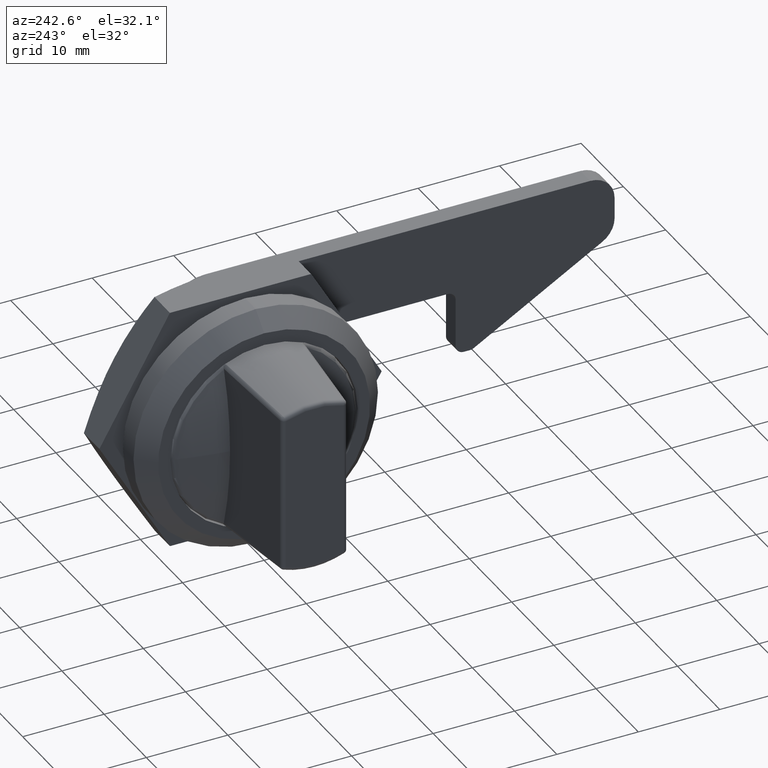
[diagram: clean part render]
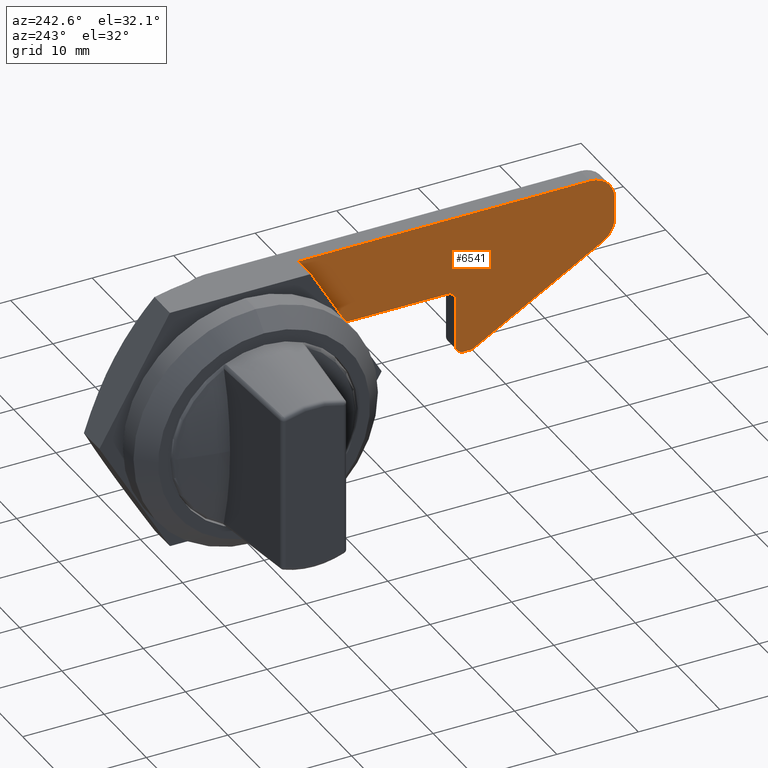
[diagram: same view with one face highlighted and labeled with its STEP entity id]
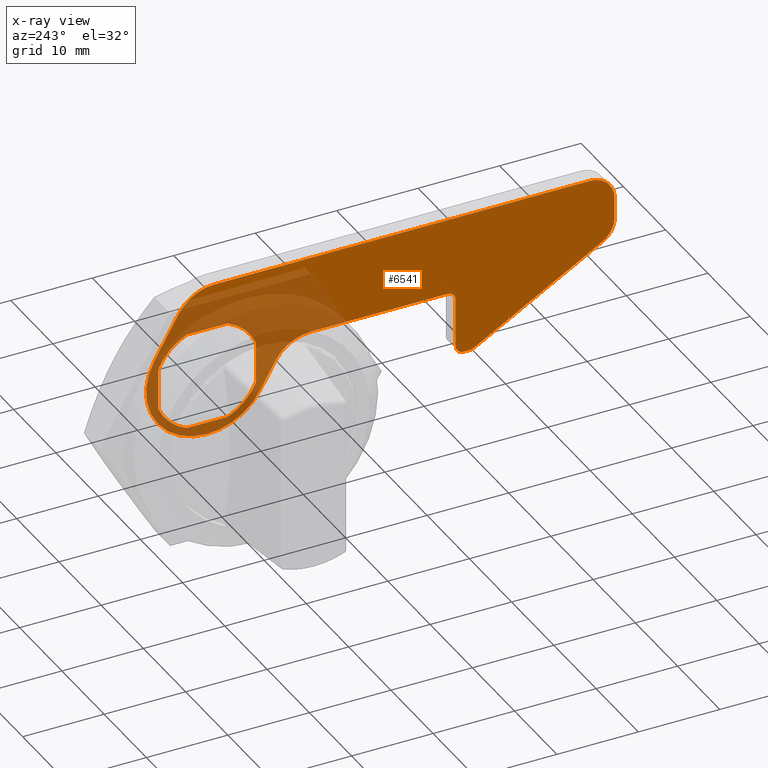
[diagram: x-ray of the same camera — body ghosted, the highlighted face saturated]
A machine part, auxiliary view. The second image highlights one B-rep face of the part: STEP entity #6541.
The next image is the same camera in x-ray: the body ghosted, the highlighted face saturated — about 28% of this face is hidden behind the body in this view.
In plain terms, the highlighted planar face has unit normal (-1, 0, 0).
Its self-contained STEP definition (entity closure, byte-faithful):
#54 = CARTESIAN_POINT ( 'NONE',  ( 13.50000000000839900, -31.50000000000000000, -5.999999999999920100 ) ) ;
#248 = CARTESIAN_POINT ( 'NONE',  ( 13.50000000000836000, 2.500000000000000000, -6.000000000000000000 ) ) ;
#254 = VERTEX_POINT ( 'NONE', #5763 ) ;
#405 = EDGE_CURVE ( 'NONE', #10635, #23935, #15669, .T. ) ;
#538 = VERTEX_POINT ( 'NONE', #21244 ) ;
#587 = VECTOR ( 'NONE', #23249, 1000.000000000000100 ) ;
#637 = CARTESIAN_POINT ( 'NONE',  ( 13.50000000000839900, 3.464101615137795200, 9.000000000000000000 ) ) ;
#775 = ORIENTED_EDGE ( 'NONE', *, *, #4276, .F. ) ;
#842 = AXIS2_PLACEMENT_3D ( 'NONE', #18785, #5806, #20954 ) ;
#1047 = DIRECTION ( 'NONE',  ( -0.0000000000000000000, -0.0000000000000000000, -1.000000000000000000 ) ) ;
#1139 = CARTESIAN_POINT ( 'NONE',  ( 13.50000000000836000, 2.500000000000000000, 6.000000000000000000 ) ) ;
#1321 = EDGE_LOOP ( 'NONE', ( #20393, #27928, #19697, #14343, #3587, #24465, #7569, #12874 ) ) ;
#1575 = CIRCLE ( 'NONE', #18362, 6.500000000000000000 ) ;
#1601 = DIRECTION ( 'NONE',  ( 1.000000000000000000, -0.0000000000000000000, -0.0000000000000000000 ) ) ;
#1687 = DIRECTION ( 'NONE',  ( 1.000000000000000000, -0.0000000000000000000, -0.0000000000000000000 ) ) ;
#1818 = EDGE_LOOP ( 'NONE', ( #11136, #12339, #20165, #7427, #26620, #19036, #9980, #7496, #2200, #2266, #775, #6198, #16681, #21249, #22477, #8332, #17590 ) ) ;
#1934 = CARTESIAN_POINT ( 'NONE',  ( 13.50000000000839900, -30.50000000000000000, 1.000000000000000000 ) ) ;
#1975 = AXIS2_PLACEMENT_3D ( 'NONE', #22445, #9504, #24640 ) ;
#2200 = ORIENTED_EDGE ( 'NONE', *, *, #21419, .F. ) ;
#2266 = ORIENTED_EDGE ( 'NONE', *, *, #6160, .F. ) ;
#2734 = VERTEX_POINT ( 'NONE', #17227 ) ;
#2936 = DIRECTION ( 'NONE',  ( 1.000000000000000000, -0.0000000000000000000, -0.0000000000000000000 ) ) ;
#3161 = AXIS2_PLACEMENT_3D ( 'NONE', #5783, #20932, #7982 ) ;
#3281 = EDGE_CURVE ( 'NONE', #20198, #25866, #18709, .T. ) ;
#3408 = VECTOR ( 'NONE', #8437, 1000.000000000000000 ) ;
#3497 = LINE ( 'NONE', #23769, #15705 ) ;
#3514 = EDGE_CURVE ( 'NONE', #20195, #20198, #17370, .T. ) ;
#3587 = ORIENTED_EDGE ( 'NONE', *, *, #20029, .T. ) ;
#3937 = VERTEX_POINT ( 'NONE', #10945 ) ;
#4276 = EDGE_CURVE ( 'NONE', #2734, #13366, #18350, .T. ) ;
#4287 = AXIS2_PLACEMENT_3D ( 'NONE', #9214, #24344, #11383 ) ;
#4585 = DIRECTION ( 'NONE',  ( -0.0000000000000000000, -0.0000000000000000000, 1.000000000000000000 ) ) ;
#4801 = DIRECTION ( 'NONE',  ( 1.000000000000000000, -0.0000000000000000000, -0.0000000000000000000 ) ) ;
#5071 = CARTESIAN_POINT ( 'NONE',  ( 13.50000000000839900, -0.8660254037844059600, 11.50000000000000000 ) ) ;
#5167 = VECTOR ( 'NONE', #16990, 999.9999999999998900 ) ;
#5172 = CIRCLE ( 'NONE', #17130, 5.000000000000000000 ) ;
#5465 = CIRCLE ( 'NONE', #9187, 5.000000000000000000 ) ;
#5511 = PLANE ( 'NONE',  #16459 ) ;
#5535 = VERTEX_POINT ( 'NONE', #1934 ) ;
#5763 = CARTESIAN_POINT ( 'NONE',  ( 13.50000000000839900, -29.50000000000000000, 2.000000000000000000 ) ) ;
#5783 = CARTESIAN_POINT ( 'NONE',  ( 13.50000000000836000, 0.0000000000000000000, -1.421085471520200100E-014 ) ) ;
#5806 = DIRECTION ( 'NONE',  ( 1.000000000000000000, -0.0000000000000000000, -0.0000000000000000000 ) ) ;
#5840 = VECTOR ( 'NONE', #4585, 1000.000000000000000 ) ;
#5930 = VERTEX_POINT ( 'NONE', #637 ) ;
#5974 = LINE ( 'NONE', #11822, #10393 ) ;
#6083 = CARTESIAN_POINT ( 'NONE',  ( 13.50000000000839900, 6.495190528383280300, 3.750000000000000000 ) ) ;
#6115 = DIRECTION ( 'NONE',  ( -0.0000000000000000000, 1.000000000000000000, -0.0000000000000000000 ) ) ;
#6160 = EDGE_CURVE ( 'NONE', #13366, #9782, #23392, .T. ) ;
#6198 = ORIENTED_EDGE ( 'NONE', *, *, #24052, .F. ) ;
#6248 = CARTESIAN_POINT ( 'NONE',  ( 13.50000000000836000, 9.941353296127888600E-014, 11.50000000000000000 ) ) ;
#6301 = VERTEX_POINT ( 'NONE', #11769 ) ;
#6320 = LINE ( 'NONE', #21084, #587 ) ;
#6533 = DIRECTION ( 'NONE',  ( 1.000000000000000000, -0.0000000000000000000, -0.0000000000000000000 ) ) ;
#6541 = ADVANCED_FACE ( 'NONE', ( #26467, #20678 ), #5511, .T. ) ;
#6858 = CARTESIAN_POINT ( 'NONE',  ( 13.50000000000836000, -30.50000000000000000, 8.526512829121199700E-014 ) ) ;
#6959 = CARTESIAN_POINT ( 'NONE',  ( 13.50000000000836000, 0.0000000000000000000, -1.421085471520200100E-014 ) ) ;
#7133 = DIRECTION ( 'NONE',  ( 1.000000000000000000, -0.0000000000000000000, -0.0000000000000000000 ) ) ;
#7258 = CARTESIAN_POINT ( 'NONE',  ( 13.50000000000839900, -50.00000000000000000, 8.500000000000000000 ) ) ;
#7327 = CARTESIAN_POINT ( 'NONE',  ( 13.50000000000839900, -30.50000000000000000, -4.999999999999920100 ) ) ;
#7427 = ORIENTED_EDGE ( 'NONE', *, *, #3281, .F. ) ;
#7496 = ORIENTED_EDGE ( 'NONE', *, *, #24214, .T. ) ;
#7511 = CIRCLE ( 'NONE', #16958, 1.000000000000000000 ) ;
#7569 = ORIENTED_EDGE ( 'NONE', *, *, #25811, .T. ) ;
#7669 = CARTESIAN_POINT ( 'NONE',  ( 13.50000000000836000, -6.000000000000000000, -2.500000000000000000 ) ) ;
#7982 = DIRECTION ( 'NONE',  ( 0.0000000000000000000, -1.776356839400250500E-015, 1.000000000000000000 ) ) ;
#8258 = CARTESIAN_POINT ( 'NONE',  ( 13.50000000000836000, -10.72307621135325900, -18.57291281149720400 ) ) ;
#8332 = ORIENTED_EDGE ( 'NONE', *, *, #13808, .F. ) ;
#8437 = DIRECTION ( 'NONE',  ( -0.0000000000000000000, -1.000000000000000000, -0.0000000000000000000 ) ) ;
#9021 = EDGE_CURVE ( 'NONE', #25462, #19439, #14918, .T. ) ;
#9127 = DIRECTION ( 'NONE',  ( -0.0000000000000000000, 1.000000000000000000, -0.0000000000000000000 ) ) ;
#9129 = DIRECTION ( 'NONE',  ( 1.000000000000000000, -0.0000000000000000000, -0.0000000000000000000 ) ) ;
#9135 = DIRECTION ( 'NONE',  ( 0.0000000000000000000, 0.0000000000000000000, 1.000000000000000000 ) ) ;
#9187 = AXIS2_PLACEMENT_3D ( 'NONE', #17764, #4801, #19953 ) ;
#9214 = CARTESIAN_POINT ( 'NONE',  ( 13.50000000000836000, 0.0000000000000000000, -1.421085471520200100E-014 ) ) ;
#9295 = VECTOR ( 'NONE', #11616, 1000.000000000000000 ) ;
#9504 = DIRECTION ( 'NONE',  ( 1.000000000000000000, -0.0000000000000000000, -0.0000000000000000000 ) ) ;
#9782 = VERTEX_POINT ( 'NONE', #7327 ) ;
#9872 = DIRECTION ( 'NONE',  ( -1.000000000000000000, 0.0000000000000000000, 0.0000000000000000000 ) ) ;
#9897 = VECTOR ( 'NONE', #25439, 1000.000000000000000 ) ;
#9980 = ORIENTED_EDGE ( 'NONE', *, *, #24377, .F. ) ;
#10318 = CARTESIAN_POINT ( 'NONE',  ( 13.50000000000836000, -6.000000000000000000, 4.263256414560599900E-014 ) ) ;
#10393 = VECTOR ( 'NONE', #1047, 1000.000000000000000 ) ;
#10410 = CARTESIAN_POINT ( 'NONE',  ( 13.50000000000839900, -47.00000000000000000, 5.835680518387389900 ) ) ;
#10635 = VERTEX_POINT ( 'NONE', #25229 ) ;
#10708 = VERTEX_POINT ( 'NONE', #23228 ) ;
#10726 = CIRCLE ( 'NONE', #18904, 7.500000000000000000 ) ;
#10945 = CARTESIAN_POINT ( 'NONE',  ( 13.50000000000839900, -12.70170592217190000, 2.000000000000000000 ) ) ;
#11069 = CIRCLE ( 'NONE', #24184, 3.000000000000000900 ) ;
#11136 = ORIENTED_EDGE ( 'NONE', *, *, #21453, .F. ) ;
#11383 = DIRECTION ( 'NONE',  ( 0.0000000000000000000, 8.881784197001252300E-016, 1.000000000000000000 ) ) ;
#11499 = CARTESIAN_POINT ( 'NONE',  ( 13.50000000000839900, -47.00000000000000000, 11.50000000000000000 ) ) ;
#11575 = AXIS2_PLACEMENT_3D ( 'NONE', #6959, #22071, #9135 ) ;
#11616 = DIRECTION ( 'NONE',  ( -0.0000000000000000000, 1.000000000000000000, -6.938893903907230300E-016 ) ) ;
#11769 = CARTESIAN_POINT ( 'NONE',  ( 13.50000000000839900, -2.500000000000000000, 6.000000000000000000 ) ) ;
#11822 = CARTESIAN_POINT ( 'NONE',  ( 13.50000000000836000, -50.00000000000000000, 8.526512829121199700E-014 ) ) ;
#12009 = VERTEX_POINT ( 'NONE', #20211 ) ;
#12041 = VERTEX_POINT ( 'NONE', #7258 ) ;
#12288 = LINE ( 'NONE', #6858, #5840 ) ;
#12339 = ORIENTED_EDGE ( 'NONE', *, *, #15881, .F. ) ;
#12537 = CARTESIAN_POINT ( 'NONE',  ( 13.50000000000836000, -6.495190528383220800, -3.750000000000055100 ) ) ;
#12572 = DIRECTION ( 'NONE',  ( 0.0000000000000000000, 2.312964634635742300E-015, 1.000000000000000000 ) ) ;
#12612 = DIRECTION ( 'NONE',  ( -0.0000000000000000000, 0.8660254037844387100, -0.4999999999999998900 ) ) ;
#12646 = CIRCLE ( 'NONE', #3161, 6.500000000000000000 ) ;
#12771 = VERTEX_POINT ( 'NONE', #6083 ) ;
#12874 = ORIENTED_EDGE ( 'NONE', *, *, #26046, .T. ) ;
#13055 = AXIS2_PLACEMENT_3D ( 'NONE', #20091, #7133, #22253 ) ;
#13104 = CARTESIAN_POINT ( 'NONE',  ( 13.50000000000836000, 6.000000000000000000, -2.500000000000000000 ) ) ;
#13366 = VERTEX_POINT ( 'NONE', #54 ) ;
#13437 = VECTOR ( 'NONE', #18646, 1000.000000000000000 ) ;
#13674 = EDGE_CURVE ( 'NONE', #6301, #10635, #16494, .T. ) ;
#13808 = EDGE_CURVE ( 'NONE', #19439, #12041, #17183, .T. ) ;
#14028 = VERTEX_POINT ( 'NONE', #13104 ) ;
#14301 = CARTESIAN_POINT ( 'NONE',  ( 13.50000000000836000, 4.163336342344294400E-015, 6.000000000000000000 ) ) ;
#14343 = ORIENTED_EDGE ( 'NONE', *, *, #18392, .T. ) ;
#14548 = CARTESIAN_POINT ( 'NONE',  ( 13.50000000000839900, -29.50000000000000000, 1.000000000000000000 ) ) ;
#14635 = CARTESIAN_POINT ( 'NONE',  ( 13.50000000000839900, -32.23205080756915200, -4.999999999999920100 ) ) ;
#14918 = LINE ( 'NONE', #6248, #3408 ) ;
#15151 = EDGE_CURVE ( 'NONE', #12041, #22227, #5974, .T. ) ;
#15310 = VERTEX_POINT ( 'NONE', #1139 ) ;
#15669 = LINE ( 'NONE', #10318, #9897 ) ;
#15705 = VECTOR ( 'NONE', #25963, 1000.000000000000000 ) ;
#15881 = EDGE_CURVE ( 'NONE', #12771, #5930, #6320, .T. ) ;
#15885 = CARTESIAN_POINT ( 'NONE',  ( 13.50000000000836000, 0.0000000000000000000, -1.421085471520200100E-014 ) ) ;
#16282 = CARTESIAN_POINT ( 'NONE',  ( 13.50000000000839900, -6.245004513516739700E-017, -7.500000000000000000 ) ) ;
#16362 = VECTOR ( 'NONE', #12612, 1000.000000000000000 ) ;
#16411 = EDGE_CURVE ( 'NONE', #25866, #12771, #10726, .T. ) ;
#16459 = AXIS2_PLACEMENT_3D ( 'NONE', #18475, #9872, #24999 ) ;
#16494 = CIRCLE ( 'NONE', #11575, 6.500000000000000000 ) ;
#16679 = CARTESIAN_POINT ( 'NONE',  ( 13.50000000000839900, -8.371578903249719900, -0.4999999999999760700 ) ) ;
#16681 = ORIENTED_EDGE ( 'NONE', *, *, #20379, .F. ) ;
#16723 = DIRECTION ( 'NONE',  ( 0.0000000000000000000, 0.0000000000000000000, 1.000000000000000000 ) ) ;
#16777 = CARTESIAN_POINT ( 'NONE',  ( 13.50000000000839900, -6.495190528383300700, -3.749999999999914700 ) ) ;
#16820 = DIRECTION ( 'NONE',  ( 0.0000000000000000000, -1.387778780781445700E-014, 1.000000000000000000 ) ) ;
#16915 = CARTESIAN_POINT ( 'NONE',  ( 13.50000000000836000, 9.941353296127888600E-014, 2.000000000000000000 ) ) ;
#16958 = AXIS2_PLACEMENT_3D ( 'NONE', #14548, #1601, #16723 ) ;
#16990 = DIRECTION ( 'NONE',  ( -0.0000000000000000000, 0.5000000000000119900, -0.8660254037844317100 ) ) ;
#17081 = EDGE_CURVE ( 'NONE', #23935, #12009, #1575, .T. ) ;
#17130 = AXIS2_PLACEMENT_3D ( 'NONE', #22065, #9129, #24251 ) ;
#17183 = CIRCLE ( 'NONE', #13055, 2.999999999999999100 ) ;
#17227 = CARTESIAN_POINT ( 'NONE',  ( 13.50000000000839900, -32.23205080756915200, -5.999999999999920100 ) ) ;
#17321 = LINE ( 'NONE', #14301, #13437 ) ;
#17327 = EDGE_CURVE ( 'NONE', #22227, #25936, #11069, .T. ) ;
#17370 = LINE ( 'NONE', #12537, #5167 ) ;
#17590 = ORIENTED_EDGE ( 'NONE', *, *, #9021, .F. ) ;
#17699 = VECTOR ( 'NONE', #9127, 1000.000000000000000 ) ;
#17764 = CARTESIAN_POINT ( 'NONE',  ( 13.50000000000839900, -12.70170592217190000, -3.000000000000000000 ) ) ;
#18048 = DIRECTION ( 'NONE',  ( 0.0000000000000000000, 0.0000000000000000000, 1.000000000000000000 ) ) ;
#18333 = LINE ( 'NONE', #16915, #19016 ) ;
#18350 = LINE ( 'NONE', #26346, #17699 ) ;
#18362 = AXIS2_PLACEMENT_3D ( 'NONE', #15885, #2936, #18048 ) ;
#18392 = EDGE_CURVE ( 'NONE', #12009, #25584, #26554, .T. ) ;
#18459 = CARTESIAN_POINT ( 'NONE',  ( 13.50000000000839900, -48.50000000000000000, 3.237604307034069900 ) ) ;
#18475 = CARTESIAN_POINT ( 'NONE',  ( 13.50000000000836000, 9.941353296127888600E-014, 8.526512829121199700E-014 ) ) ;
#18646 = DIRECTION ( 'NONE',  ( -0.0000000000000000000, -1.000000000000000000, 6.938893903907230300E-016 ) ) ;
#18709 = CIRCLE ( 'NONE', #842, 7.500000000000000000 ) ;
#18785 = CARTESIAN_POINT ( 'NONE',  ( 13.50000000000839900, -6.245004513516739700E-017, 0.0000000000000000000 ) ) ;
#18904 = AXIS2_PLACEMENT_3D ( 'NONE', #19491, #6533, #21663 ) ;
#19016 = VECTOR ( 'NONE', #6115, 1000.000000000000000 ) ;
#19036 = ORIENTED_EDGE ( 'NONE', *, *, #25099, .T. ) ;
#19439 = VERTEX_POINT ( 'NONE', #11499 ) ;
#19491 = CARTESIAN_POINT ( 'NONE',  ( 13.50000000000839900, -6.245004513516739700E-017, 0.0000000000000000000 ) ) ;
#19697 = ORIENTED_EDGE ( 'NONE', *, *, #17081, .T. ) ;
#19953 = DIRECTION ( 'NONE',  ( 0.0000000000000000000, 1.040834085586084300E-015, 1.000000000000000000 ) ) ;
#20029 = EDGE_CURVE ( 'NONE', #25584, #14028, #12646, .T. ) ;
#20091 = CARTESIAN_POINT ( 'NONE',  ( 13.50000000000839900, -47.00000000000000000, 8.500000000000000000 ) ) ;
#20165 = ORIENTED_EDGE ( 'NONE', *, *, #16411, .F. ) ;
#20195 = VERTEX_POINT ( 'NONE', #16679 ) ;
#20198 = VERTEX_POINT ( 'NONE', #16777 ) ;
#20211 = CARTESIAN_POINT ( 'NONE',  ( 13.50000000000836000, -2.500000000000000000, -6.000000000000000000 ) ) ;
#20379 = EDGE_CURVE ( 'NONE', #25936, #10708, #22116, .T. ) ;
#20393 = ORIENTED_EDGE ( 'NONE', *, *, #13674, .T. ) ;
#20678 = FACE_OUTER_BOUND ( 'NONE', #1818, .T. ) ;
#20749 = EDGE_CURVE ( 'NONE', #14028, #538, #3497, .T. ) ;
#20932 = DIRECTION ( 'NONE',  ( 1.000000000000000000, -0.0000000000000000000, -0.0000000000000000000 ) ) ;
#20954 = DIRECTION ( 'NONE',  ( 0.0000000000000000000, 1.776356839400250500E-015, 1.000000000000000000 ) ) ;
#21084 = CARTESIAN_POINT ( 'NONE',  ( 13.50000000000836000, 6.495190528383309600, 3.750000000000049700 ) ) ;
#21244 = CARTESIAN_POINT ( 'NONE',  ( 13.50000000000836000, 6.000000000000000000, 2.500000000000000000 ) ) ;
#21249 = ORIENTED_EDGE ( 'NONE', *, *, #17327, .F. ) ;
#21419 = EDGE_CURVE ( 'NONE', #9782, #5535, #12288, .T. ) ;
#21453 = EDGE_CURVE ( 'NONE', #5930, #25462, #5172, .T. ) ;
#21663 = DIRECTION ( 'NONE',  ( 0.0000000000000000000, 0.0000000000000000000, 1.000000000000000000 ) ) ;
#22065 = CARTESIAN_POINT ( 'NONE',  ( 13.50000000000839900, -0.8660254037844059600, 6.500000000000089700 ) ) ;
#22071 = DIRECTION ( 'NONE',  ( 1.000000000000000000, -0.0000000000000000000, -0.0000000000000000000 ) ) ;
#22116 = LINE ( 'NONE', #8258, #16362 ) ;
#22227 = VERTEX_POINT ( 'NONE', #24255 ) ;
#22253 = DIRECTION ( 'NONE',  ( 0.0000000000000000000, 0.0000000000000000000, 1.000000000000000000 ) ) ;
#22445 = CARTESIAN_POINT ( 'NONE',  ( 13.50000000000839900, -31.50000000000000000, -4.999999999999920100 ) ) ;
#22477 = ORIENTED_EDGE ( 'NONE', *, *, #15151, .F. ) ;
#23228 = CARTESIAN_POINT ( 'NONE',  ( 13.50000000000839900, -32.73205080756905300, -5.866025403784419700 ) ) ;
#23249 = DIRECTION ( 'NONE',  ( -0.0000000000000000000, -0.5000000000000003300, 0.8660254037844383700 ) ) ;
#23392 = CIRCLE ( 'NONE', #1975, 1.000000000000000000 ) ;
#23745 = CIRCLE ( 'NONE', #4287, 6.500000000000000000 ) ;
#23769 = CARTESIAN_POINT ( 'NONE',  ( 13.50000000000836000, 6.000000000000000000, 4.263256414560599900E-014 ) ) ;
#23935 = VERTEX_POINT ( 'NONE', #7669 ) ;
#24052 = EDGE_CURVE ( 'NONE', #10708, #2734, #25444, .T. ) ;
#24184 = AXIS2_PLACEMENT_3D ( 'NONE', #10410, #25531, #12572 ) ;
#24214 = EDGE_CURVE ( 'NONE', #254, #5535, #7511, .T. ) ;
#24251 = DIRECTION ( 'NONE',  ( 0.0000000000000000000, 0.0000000000000000000, 1.000000000000000000 ) ) ;
#24255 = CARTESIAN_POINT ( 'NONE',  ( 13.50000000000839900, -50.00000000000000000, 5.835680518387389900 ) ) ;
#24344 = DIRECTION ( 'NONE',  ( 1.000000000000000000, -0.0000000000000000000, -0.0000000000000000000 ) ) ;
#24377 = EDGE_CURVE ( 'NONE', #254, #3937, #18333, .T. ) ;
#24465 = ORIENTED_EDGE ( 'NONE', *, *, #20749, .T. ) ;
#24640 = DIRECTION ( 'NONE',  ( 0.0000000000000000000, 0.0000000000000000000, 1.000000000000000000 ) ) ;
#24999 = DIRECTION ( 'NONE',  ( 0.0000000000000000000, 0.0000000000000000000, 1.000000000000000000 ) ) ;
#25099 = EDGE_CURVE ( 'NONE', #20195, #3937, #5465, .T. ) ;
#25229 = CARTESIAN_POINT ( 'NONE',  ( 13.50000000000836000, -6.000000000000000000, 2.500000000000000000 ) ) ;
#25439 = DIRECTION ( 'NONE',  ( -0.0000000000000000000, -0.0000000000000000000, -1.000000000000000000 ) ) ;
#25444 = CIRCLE ( 'NONE', #27647, 1.000000000000000000 ) ;
#25462 = VERTEX_POINT ( 'NONE', #5071 ) ;
#25531 = DIRECTION ( 'NONE',  ( 1.000000000000000000, -0.0000000000000000000, -0.0000000000000000000 ) ) ;
#25584 = VERTEX_POINT ( 'NONE', #248 ) ;
#25811 = EDGE_CURVE ( 'NONE', #538, #15310, #23745, .T. ) ;
#25866 = VERTEX_POINT ( 'NONE', #16282 ) ;
#25936 = VERTEX_POINT ( 'NONE', #18459 ) ;
#25963 = DIRECTION ( 'NONE',  ( -0.0000000000000000000, -0.0000000000000000000, 1.000000000000000000 ) ) ;
#26046 = EDGE_CURVE ( 'NONE', #15310, #6301, #17321, .T. ) ;
#26346 = CARTESIAN_POINT ( 'NONE',  ( 13.50000000000836000, 9.941353296127888600E-014, -5.999999999999920100 ) ) ;
#26467 = FACE_BOUND ( 'NONE', #1321, .T. ) ;
#26554 = LINE ( 'NONE', #26753, #9295 ) ;
#26620 = ORIENTED_EDGE ( 'NONE', *, *, #3514, .F. ) ;
#26753 = CARTESIAN_POINT ( 'NONE',  ( 13.50000000000836000, -4.163336342344374900E-015, -6.000000000000000000 ) ) ;
#27647 = AXIS2_PLACEMENT_3D ( 'NONE', #14635, #1687, #16820 ) ;
#27928 = ORIENTED_EDGE ( 'NONE', *, *, #405, .T. ) ;